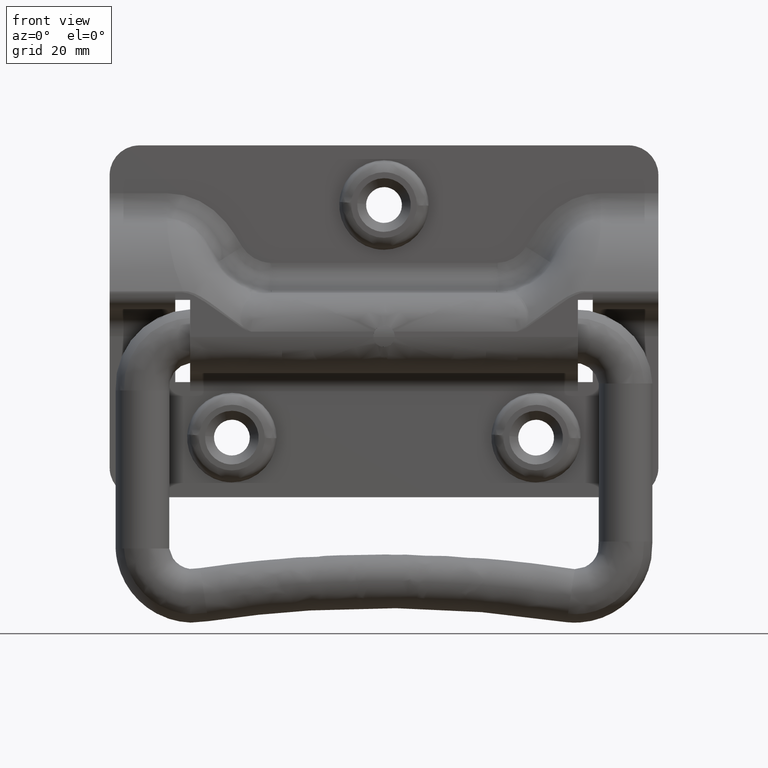
[diagram: clean part render]
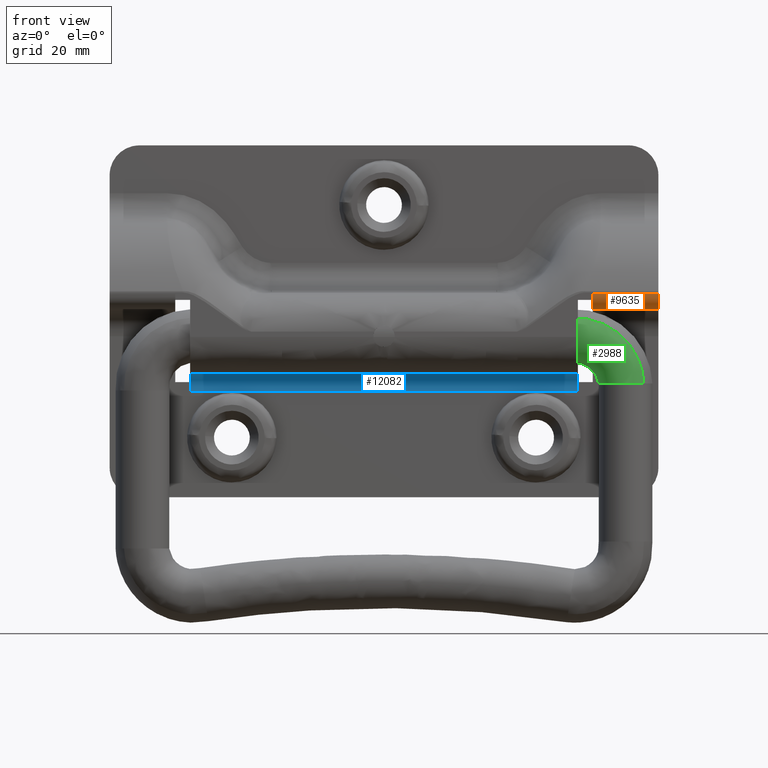
[diagram: same view with three faces highlighted in distinct colors, each labeled with its STEP entity id]
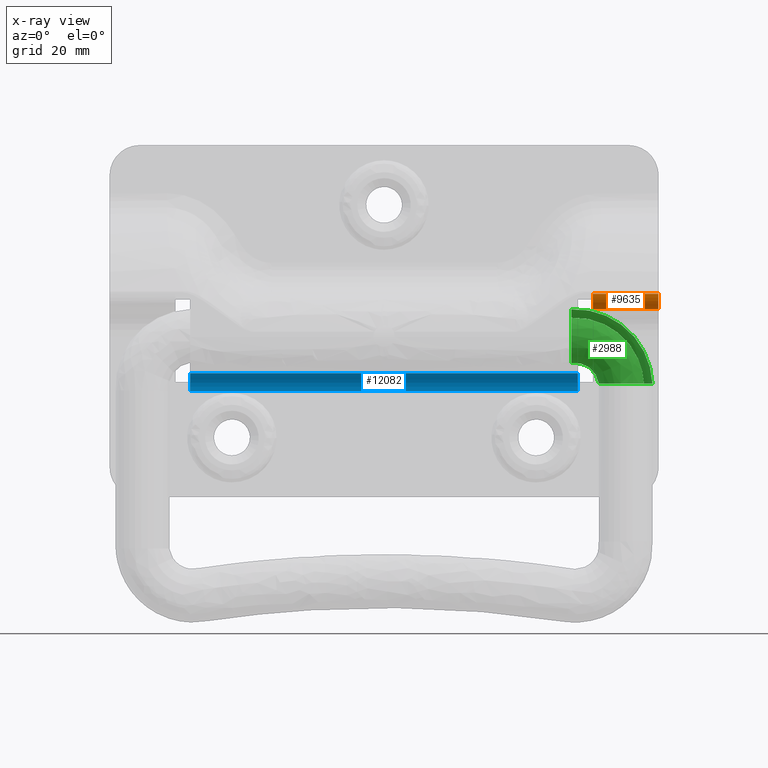
[diagram: x-ray of the same camera — body ghosted, the three highlighted faces saturated]
A machine part, front view with three faces highlighted in distinct colors.
The next image is the same camera in x-ray (body ghosted, the three faces saturated) — at least one of them is partly hidden behind the body in this view.
Their STEP definitions:

[orange] entity #9635 — the highlighted face is a freeform B-spline surface patch.
#9544=CARTESIAN_POINT('',(35.0,-6.898723108055551,7.099999999999900));
#9545=VERTEX_POINT('',#9544);
#9546=CARTESIAN_POINT('',(35.0,-6.698723108055599,6.100000000000001));
#9547=VERTEX_POINT('',#9546);
#9548=CARTESIAN_POINT('',(35.0,-6.898723108055556,7.099999999999900));
#9549=CARTESIAN_POINT('',(35.0,-6.898723108055556,6.579999999999957));
#9550=CARTESIAN_POINT('',(35.0,-6.698723108055598,6.100000000000001));
#9558=(BOUNDED_CURVE()B_SPLINE_CURVE(2,(#9548,#9549,#9550),.UNSPECIFIED.,.F.,.U.)CURVE()GEOMETRIC_REPRESENTATION_ITEM()QUASI_UNIFORM_CURVE()RATIONAL_B_SPLINE_CURVE((1.0,0.980580675690924,1.0))REPRESENTATION_ITEM(''));
#9559=EDGE_CURVE('',#9545,#9547,#9558,.T.);
#9576=CARTESIAN_POINT('',(46.275000000000013,-6.897832152992004,7.168060065600374));
#9577=CARTESIAN_POINT('',(34.718124999999993,-6.897832152992004,7.168060065600374));
#9578=CARTESIAN_POINT('',(46.275000000000013,-6.972106681165132,4.331630269655194));
#9579=CARTESIAN_POINT('',(34.718124999999986,-6.972106681165132,4.331630269655194));
#9580=CARTESIAN_POINT('',(46.275000000000013,-4.139996905264931,4.504849524103047));
#9581=CARTESIAN_POINT('',(34.718124999999993,-4.139996905264931,4.504849524103047));
#9589=(BOUNDED_SURFACE()B_SPLINE_SURFACE(1,2,((#9576,#9578,#9580),(#9577,#9579,#9581)),.UNSPECIFIED.,.F.,.F.,.U.)B_SPLINE_SURFACE_WITH_KNOTS((2,2),(3,3),(0.0,11.556875000000019),(0.0,4.576109521275066),.UNSPECIFIED.)GEOMETRIC_REPRESENTATION_ITEM()RATIONAL_B_SPLINE_SURFACE(((1.0,0.675590207615660,1.0),(1.0,0.675590207615660,1.0)))REPRESENTATION_ITEM('')SURFACE());
#9590=ORIENTED_EDGE('',*,*,#9559,.T.);
#9591=CARTESIAN_POINT('',(35.0,-4.298723108055556,4.499999999999900));
#9592=VERTEX_POINT('',#9591);
#9593=CARTESIAN_POINT('',(35.0,-6.698723108055598,6.100000000000001));
#9594=CARTESIAN_POINT('',(34.999999999999993,-6.032056441388969,4.499999999999900));
#9595=CARTESIAN_POINT('',(35.0,-4.298723108055556,4.499999999999900));
#9603=(BOUNDED_CURVE()B_SPLINE_CURVE(2,(#9593,#9594,#9595),.UNSPECIFIED.,.F.,.U.)CURVE()GEOMETRIC_REPRESENTATION_ITEM()QUASI_UNIFORM_CURVE()RATIONAL_B_SPLINE_CURVE((1.0,0.832050294337832,1.0))REPRESENTATION_ITEM(''));
#9604=EDGE_CURVE('',#9547,#9592,#9603,.T.);
#9605=ORIENTED_EDGE('',*,*,#9604,.T.);
#9606=CARTESIAN_POINT('',(46.0,-4.298723108055556,4.499999999999900));
#9607=VERTEX_POINT('',#9606);
#9608=CARTESIAN_POINT('',(46.0,-4.298723108055556,4.499999999999900));
#9609=CARTESIAN_POINT('',(35.0,-4.298723108055556,4.499999999999900));
#9610=QUASI_UNIFORM_CURVE('',1,(#9608,#9609),.UNSPECIFIED.,.F.,.U.);
#9611=EDGE_CURVE('',#9607,#9592,#9610,.T.);
#9612=ORIENTED_EDGE('',*,*,#9611,.F.);
#9613=CARTESIAN_POINT('',(46.0,-6.898723108055551,7.099999999999900));
#9614=VERTEX_POINT('',#9613);
#9615=CARTESIAN_POINT('',(46.0,-6.898723108055556,7.099999999999900));
#9616=CARTESIAN_POINT('',(46.000000000000007,-6.898723108055556,4.499999999999900));
#9617=CARTESIAN_POINT('',(46.0,-4.298723108055556,4.499999999999900));
#9625=(BOUNDED_CURVE()B_SPLINE_CURVE(2,(#9615,#9616,#9617),.UNSPECIFIED.,.F.,.U.)CURVE()GEOMETRIC_REPRESENTATION_ITEM()QUASI_UNIFORM_CURVE()RATIONAL_B_SPLINE_CURVE((1.0,0.707106781186548,1.0))REPRESENTATION_ITEM(''));
#9626=EDGE_CURVE('',#9614,#9607,#9625,.T.);
#9627=ORIENTED_EDGE('',*,*,#9626,.F.);
#9628=CARTESIAN_POINT('',(46.0,-6.898723108055551,7.099999999999900));
#9629=CARTESIAN_POINT('',(35.0,-6.898723108055551,7.099999999999900));
#9630=QUASI_UNIFORM_CURVE('',1,(#9628,#9629),.UNSPECIFIED.,.F.,.U.);
#9631=EDGE_CURVE('',#9614,#9545,#9630,.T.);
#9632=ORIENTED_EDGE('',*,*,#9631,.T.);
#9633=EDGE_LOOP('',(#9590,#9605,#9612,#9627,#9632));
#9634=FACE_OUTER_BOUND('',#9633,.T.);
#9635=ADVANCED_FACE('',(#9634),#9589,.T.);

[blue] entity #12082 — the highlighted face is a freeform B-spline surface patch.
#12022=CARTESIAN_POINT('',(34.125000000000000,4.498971974926756,-9.278530844923525));
#12023=CARTESIAN_POINT('',(-34.165625000000013,4.498971974926756,-9.278530844923525));
#12024=CARTESIAN_POINT('',(34.125000000000000,4.584673353588060,-6.005727234217547));
#12025=CARTESIAN_POINT('',(-34.165625000000006,4.584673353588060,-6.005727234217547));
#12026=CARTESIAN_POINT('',(34.125000000000000,1.316854381395518,-6.205595604734300));
#12027=CARTESIAN_POINT('',(-34.165625000000013,1.316854381395518,-6.205595604734300));
#12035=(BOUNDED_SURFACE()B_SPLINE_SURFACE(1,2,((#12022,#12024,#12026),(#12023,#12025,#12027)),.UNSPECIFIED.,.F.,.F.,.U.)B_SPLINE_SURFACE_WITH_KNOTS((2,2),(3,3),(0.0,68.290625000000006),(0.0,5.280126370702002),.UNSPECIFIED.)GEOMETRIC_REPRESENTATION_ITEM()RATIONAL_B_SPLINE_SURFACE(((1.0,0.675590207615660,1.0),(1.0,0.675590207615660,1.0)))REPRESENTATION_ITEM('')SURFACE());
#12036=CARTESIAN_POINT('',(-32.500000000000000,4.500000000000090,-9.199999999999902));
#12037=VERTEX_POINT('',#12036);
#12038=CARTESIAN_POINT('',(-32.500000000000000,1.500000000000085,-6.199999999999900));
#12039=VERTEX_POINT('',#12038);
#12040=CARTESIAN_POINT('',(-32.500000000000000,4.500000000000085,-9.199999999999902));
#12041=CARTESIAN_POINT('',(-32.500000000000007,4.500000000000085,-6.199999999999901));
#12042=CARTESIAN_POINT('',(-32.500000000000000,1.500000000000085,-6.199999999999901));
#12050=(BOUNDED_CURVE()B_SPLINE_CURVE(2,(#12040,#12041,#12042),.UNSPECIFIED.,.F.,.U.)CURVE()GEOMETRIC_REPRESENTATION_ITEM()QUASI_UNIFORM_CURVE()RATIONAL_B_SPLINE_CURVE((1.0,0.707106781186548,1.0))REPRESENTATION_ITEM(''));
#12051=EDGE_CURVE('',#12037,#12039,#12050,.T.);
#12052=ORIENTED_EDGE('',*,*,#12051,.F.);
#12053=CARTESIAN_POINT('',(32.500000000000000,4.500000000000090,-9.199999999999902));
#12054=VERTEX_POINT('',#12053);
#12055=CARTESIAN_POINT('',(32.500000000000000,4.500000000000090,-9.199999999999902));
#12056=CARTESIAN_POINT('',(-32.500000000000000,4.500000000000090,-9.199999999999902));
#12057=QUASI_UNIFORM_CURVE('',1,(#12055,#12056),.UNSPECIFIED.,.F.,.U.);
#12058=EDGE_CURVE('',#12054,#12037,#12057,.T.);
#12059=ORIENTED_EDGE('',*,*,#12058,.F.);
#12060=CARTESIAN_POINT('',(32.500000000000000,1.500000000000085,-6.199999999999900));
#12061=VERTEX_POINT('',#12060);
#12062=CARTESIAN_POINT('',(32.500000000000000,4.500000000000085,-9.199999999999902));
#12063=CARTESIAN_POINT('',(32.500000000000007,4.500000000000085,-6.199999999999901));
#12064=CARTESIAN_POINT('',(32.500000000000000,1.500000000000085,-6.199999999999901));
#12072=(BOUNDED_CURVE()B_SPLINE_CURVE(2,(#12062,#12063,#12064),.UNSPECIFIED.,.F.,.U.)CURVE()GEOMETRIC_REPRESENTATION_ITEM()QUASI_UNIFORM_CURVE()RATIONAL_B_SPLINE_CURVE((1.0,0.707106781186548,1.0))REPRESENTATION_ITEM(''));
#12073=EDGE_CURVE('',#12054,#12061,#12072,.T.);
#12074=ORIENTED_EDGE('',*,*,#12073,.T.);
#12075=CARTESIAN_POINT('',(32.500000000000000,1.500000000000085,-6.199999999999900));
#12076=CARTESIAN_POINT('',(-32.500000000000000,1.500000000000085,-6.199999999999900));
#12077=QUASI_UNIFORM_CURVE('',1,(#12075,#12076),.UNSPECIFIED.,.F.,.U.);
#12078=EDGE_CURVE('',#12061,#12039,#12077,.T.);
#12079=ORIENTED_EDGE('',*,*,#12078,.T.);
#12080=EDGE_LOOP('',(#12052,#12059,#12074,#12079));
#12081=FACE_OUTER_BOUND('',#12080,.T.);
#12082=ADVANCED_FACE('',(#12081),#12035,.F.);

[green] entity #2988 — the highlighted face is a freeform B-spline surface patch.
#1648=CARTESIAN_POINT('',(44.710611476453678,1.581514667897255,-7.917789464697169));
#1649=VERTEX_POINT('',#1648);
#1655=CARTESIAN_POINT('',(45.0,0.0,-7.917789464697170));
#1656=VERTEX_POINT('',#1655);
#1657=CARTESIAN_POINT('',(44.710611476453678,1.581514667897255,-7.917789464697169));
#1658=CARTESIAN_POINT('',(44.899851791981710,1.076966526505883,-7.917789464697170));
#1659=CARTESIAN_POINT('',(45.000670940762902,0.539238459190197,-7.917789464697170));
#1660=CARTESIAN_POINT('',(45.0,0.0,-7.917789464697170));
#1661=B_SPLINE_CURVE_WITH_KNOTS('',3,(#1657,#1658,#1659,#1660),.UNSPECIFIED.,.F.,.U.,(4,4),(0.942811831421921,1.0),.UNSPECIFIED.);
#1662=EDGE_CURVE('',#1649,#1656,#1661,.T.);
#1664=CARTESIAN_POINT('',(43.580414267267876,-3.280266940607940,-7.917789464697171));
#1665=VERTEX_POINT('',#1664);
#1675=CARTESIAN_POINT('',(36.0,0.0,-7.917789464697170));
#1676=VERTEX_POINT('',#1675);
#1677=CARTESIAN_POINT('',(43.580414267267876,-3.280266940607940,-7.917789464697171));
#1678=CARTESIAN_POINT('',(42.755259952635562,-4.053043807033264,-7.917789464697170));
#1679=CARTESIAN_POINT('',(41.630972858852168,-4.500000000000000,-7.917789464697170));
#1680=CARTESIAN_POINT('',(39.321902754903853,-4.500000000000000,-7.917789464697170));
#1681=CARTESIAN_POINT('',(38.151060035565251,-4.015021066244156,-7.917789464697170));
#1682=CARTESIAN_POINT('',(36.484978933755862,-2.348939964434770,-7.917789464697170));
#1683=CARTESIAN_POINT('',(36.0,-1.178097245096172,-7.917789464697170));
#1684=CARTESIAN_POINT('',(36.0,0.0,-7.917789464697170));
#1685=B_SPLINE_CURVE_WITH_KNOTS('',3,(#1677,#1678,#1679,#1680,#1681,#1682,#1683,#1684),.UNSPECIFIED.,.F.,.U.,(4,2,2,4),(0.130000052673939,0.250000000000000,0.375000000000000,0.500000000000000),.UNSPECIFIED.);
#1686=EDGE_CURVE('',#1665,#1676,#1685,.T.);
#1688=CARTESIAN_POINT('',(40.225293920682958,4.491431864552791,-7.917789464697169));
#1689=VERTEX_POINT('',#1688);
#1690=CARTESIAN_POINT('',(36.0,0.0,-7.917789464697170));
#1691=CARTESIAN_POINT('',(35.999998454824862,1.178121569614940,-7.917789464697170));
#1692=CARTESIAN_POINT('',(36.484975254495680,2.348997884233506,-7.917789464697170));
#1693=CARTESIAN_POINT('',(38.086238306208109,3.950329177868383,-7.917789464697170));
#1694=CARTESIAN_POINT('',(39.141745217519862,4.422578651781312,-7.917789464697170));
#1695=CARTESIAN_POINT('',(40.225293920682958,4.491431864552791,-7.917789464697169));
#1696=B_SPLINE_CURVE_WITH_KNOTS('',3,(#1690,#1691,#1692,#1693,#1694,#1695),.UNSPECIFIED.,.F.,.U.,(4,2,4),(0.500000000000000,0.625000000000000,0.740274486939181),.UNSPECIFIED.);
#1697=EDGE_CURVE('',#1676,#1689,#1696,.T.);
#1784=CARTESIAN_POINT('',(40.225293920682958,4.491431864552791,-7.917789464697169));
#1785=CARTESIAN_POINT('',(40.316739344334152,4.497247131670079,-7.917789464697169));
#1786=CARTESIAN_POINT('',(40.408385028699193,4.500191266734892,-7.917789464697169));
#1787=CARTESIAN_POINT('',(41.678550682920452,4.500309103857790,-7.917789464697170));
#1788=CARTESIAN_POINT('',(42.849870326290443,4.015468046099279,-7.917789464697169));
#1789=CARTESIAN_POINT('',(44.135511193047243,2.730704114852363,-7.917789464697168));
#1790=CARTESIAN_POINT('',(44.485223633673307,2.179434392010196,-7.917789464697169));
#1791=CARTESIAN_POINT('',(44.710611476453678,1.581514667897255,-7.917789464697169));
#1792=B_SPLINE_CURVE_WITH_KNOTS('',3,(#1784,#1785,#1786,#1787,#1788,#1789,#1790,#1791),.UNSPECIFIED.,.F.,.U.,(4,2,2,4),(0.740274486939181,0.750000000000000,0.875000000000000,0.942811831421921),.UNSPECIFIED.);
#1793=EDGE_CURVE('',#1689,#1649,#1792,.T.);
#1825=CARTESIAN_POINT('',(31.417789464697261,1.582275965707717,4.212633693083777));
#1826=VERTEX_POINT('',#1825);
#1827=CARTESIAN_POINT('',(31.417789464697279,-1.897354E-015,4.500000000000000));
#1828=VERTEX_POINT('',#1827);
#1829=CARTESIAN_POINT('',(31.417789464697261,1.582275965707717,4.212633693083777));
#1830=CARTESIAN_POINT('',(31.417789464697272,1.077703287572200,4.401961902790572));
#1831=CARTESIAN_POINT('',(31.417789464697272,0.538948626777564,4.500004120926867));
#1832=CARTESIAN_POINT('',(31.417789464697279,-1.897354E-015,4.500000000000000));
#1833=B_SPLINE_CURVE_WITH_KNOTS('',3,(#1829,#1830,#1831,#1832),.UNSPECIFIED.,.F.,.U.,(4,4),(0.942815938719341,1.0),.UNSPECIFIED.);
#1834=EDGE_CURVE('',#1826,#1828,#1833,.T.);
#1890=CARTESIAN_POINT('',(31.417789464697240,4.491568550355929,-0.274715678979411));
#1891=VERTEX_POINT('',#1890);
#1897=CARTESIAN_POINT('',(31.417789464697250,-6.342583E-015,-4.500000000000001));
#1898=VERTEX_POINT('',#1897);
#1899=CARTESIAN_POINT('',(31.417789464697250,-6.342583E-015,-4.500000000000001));
#1900=CARTESIAN_POINT('',(31.417789464697250,0.589051271095591,-4.500000163199346));
#1901=CARTESIAN_POINT('',(31.417789464697250,1.177871271074785,-4.382877401867982));
#1902=CARTESIAN_POINT('',(31.417789464697240,2.266298003954507,-3.932039523511044));
#1903=CARTESIAN_POINT('',(31.417789464697240,2.765476487413660,-3.598501791938917));
#1904=CARTESIAN_POINT('',(31.417789464697261,3.598524307513876,-2.765461688950653));
#1905=CARTESIAN_POINT('',(31.417789464697272,3.932065875410550,-2.266287083242548));
#1906=CARTESIAN_POINT('',(31.417789464697250,4.347844086147685,-1.262524828009728));
#1907=CARTESIAN_POINT('',(31.417789464697250,4.460975887116850,-0.771164087683148));
#1908=CARTESIAN_POINT('',(31.417789464697240,4.491568550355929,-0.274715678979411));
#1909=B_SPLINE_CURVE_WITH_KNOTS('',3,(#1899,#1900,#1901,#1902,#1903,#1904,#1905,#1906,#1907,#1908),.UNSPECIFIED.,.F.,.U.,(4,2,2,2,4),(0.500000000000000,0.562500000000000,0.625000000000000,0.687500000000000,0.740277500264273),.UNSPECIFIED.);
#1910=EDGE_CURVE('',#1898,#1891,#1909,.T.);
#1912=CARTESIAN_POINT('',(31.417789464697272,-3.280293611540198,3.080441212172343));
#1913=VERTEX_POINT('',#1912);
#1914=CARTESIAN_POINT('',(31.417789464697272,-3.280293611540198,3.080441212172343));
#1915=CARTESIAN_POINT('',(31.417789464697279,-3.651138318877401,2.685293772487770));
#1916=CARTESIAN_POINT('',(31.417789464697272,-3.950043039418169,2.222732431532803));
#1917=CARTESIAN_POINT('',(31.417789464697279,-4.382853795419855,1.177843660027971));
#1918=CARTESIAN_POINT('',(31.417789464697261,-4.499978402193867,0.589028353145577));
#1919=CARTESIAN_POINT('',(31.417789464697279,-4.499982018318702,-0.589065498240637));
#1920=CARTESIAN_POINT('',(31.417789464697279,-4.382861026246731,-1.177880513120909));
#1921=CARTESIAN_POINT('',(31.417789464697272,-3.932026668527100,-2.266296747795999));
#1922=CARTESIAN_POINT('',(31.417789464697261,-3.598490686947668,-2.765469722280031));
#1923=CARTESIAN_POINT('',(31.417789464697250,-2.765453799522756,-3.598506835032453));
#1924=CARTESIAN_POINT('',(31.417789464697250,-2.266280658120123,-3.932043208769335));
#1925=CARTESIAN_POINT('',(31.417789464697250,-1.177863555602183,-4.382878850682763));
#1926=CARTESIAN_POINT('',(31.417789464697250,-0.589047840139115,-4.500000734285807));
#1927=CARTESIAN_POINT('',(31.417789464697250,-6.342583E-015,-4.500000000000001));
#1928=B_SPLINE_CURVE_WITH_KNOTS('',3,(#1914,#1915,#1916,#1917,#1918,#1919,#1920,#1921,#1922,#1923,#1924,#1925,#1926,#1927),.UNSPECIFIED.,.F.,.U.,(4,2,2,2,2,2,4),(0.129999068925575,0.187500000000000,0.250000000000000,0.312500000000000,0.375000000000000,0.437500000000000,0.500000000000000),.UNSPECIFIED.);
#1929=EDGE_CURVE('',#1913,#1898,#1928,.T.);
#1959=CARTESIAN_POINT('',(31.417789464697240,4.491568550355929,-0.274715678979411));
#1960=CARTESIAN_POINT('',(31.417789464697240,4.497203359466067,-0.183261335167441));
#1961=CARTESIAN_POINT('',(31.417789464697240,4.500037137354792,-0.091634333296992));
#1962=CARTESIAN_POINT('',(31.417789464697240,4.500033572634242,0.589048275720825));
#1963=CARTESIAN_POINT('',(31.417789464697240,4.382907136347519,1.177866680926506));
#1964=CARTESIAN_POINT('',(31.417789464697240,3.932061608165594,2.266289828513048));
#1965=CARTESIAN_POINT('',(31.417789464697240,3.598519904733716,2.765466322863191));
#1966=CARTESIAN_POINT('',(31.417789464697250,2.765472162795606,3.598510071631810));
#1967=CARTESIAN_POINT('',(31.417789464697250,2.266293893003015,3.932049558907789));
#1968=CARTESIAN_POINT('',(31.417789464697261,1.675792851865945,4.176643198920744));
#1969=CARTESIAN_POINT('',(31.417789464697261,1.629182105881359,4.195032888959829));
#1970=CARTESIAN_POINT('',(31.417789464697261,1.582275965707717,4.212633693083777));
#1971=B_SPLINE_CURVE_WITH_KNOTS('',3,(#1959,#1960,#1961,#1962,#1963,#1964,#1965,#1966,#1967,#1968,#1969,#1970),.UNSPECIFIED.,.F.,.U.,(4,2,2,2,2,4),(0.740277500264273,0.750000000000000,0.812500000000000,0.875000000000000,0.937500000000000,0.942815938719341),.UNSPECIFIED.);
#1972=EDGE_CURVE('',#1891,#1826,#1971,.T.);
#2825=CARTESIAN_POINT('',(31.324847549401170,-3.196226441883169,3.165514054163981));
#2826=CARTESIAN_POINT('',(31.325087277805569,-3.224033288261541,3.135412816994848));
#2827=CARTESIAN_POINT('',(31.331809277756111,-4.036833211394922,2.291372181639009));
#2828=CARTESIAN_POINT('',(31.341087702508471,-4.500000271108926,1.126336837882859));
#2829=CARTESIAN_POINT('',(31.359477307800670,-4.499999999999912,-1.182734011412302));
#2830=CARTESIAN_POINT('',(31.368801982907389,-4.015021066244068,-2.353576730752954));
#2831=CARTESIAN_POINT('',(31.382070771890909,-2.348939964434726,-4.019657832565089));
#2832=CARTESIAN_POINT('',(31.385933178784988,-1.178097245096126,-4.504636766321761));
#2833=CARTESIAN_POINT('',(31.385933178784999,1.178097245096216,-4.504636766321760));
#2834=CARTESIAN_POINT('',(31.382070771890909,2.348939964434814,-4.019657832565085));
#2835=CARTESIAN_POINT('',(31.368801982907389,4.015021066244248,-2.353576730752948));
#2836=CARTESIAN_POINT('',(31.359477307800681,4.500000000000088,-1.182734011412302));
#2837=CARTESIAN_POINT('',(31.340712406464011,4.500000000000088,1.173460478784103));
#2838=CARTESIAN_POINT('',(31.331387731357399,4.015021066244248,2.344303198124731));
#2839=CARTESIAN_POINT('',(31.318118939640190,2.348939969569493,4.010384643200133));
#2840=CARTESIAN_POINT('',(31.314122207938340,1.137351761366009,4.512229925841688));
#2841=CARTESIAN_POINT('',(31.314258792855810,-0.081999805982146,4.495079788772660));
#2842=CARTESIAN_POINT('',(31.314256535480201,-0.122993349134687,4.495363233693721));
#2843=CARTESIAN_POINT('',(32.881383282490212,-3.196226441884225,3.255581797886012));
#2844=CARTESIAN_POINT('',(32.877606589176288,-3.224033288262609,3.225448620472297));
#2845=CARTESIAN_POINT('',(32.771707864605403,-4.036833211396318,2.380512378594364));
#2846=CARTESIAN_POINT('',(32.625535095409226,-4.500000271110327,1.214240822731345));
#2847=CARTESIAN_POINT('',(32.335824330734852,-4.500000000001314,-1.097280167974774));
#2848=CARTESIAN_POINT('',(32.188922931135139,-4.015021066245470,-2.269365261594013));
#2849=CARTESIAN_POINT('',(31.979885763580050,-2.348939964435423,-3.937214232203037));
#2850=CARTESIAN_POINT('',(31.919037211533020,-1.178097245096827,-4.422707774236105));
#2851=CARTESIAN_POINT('',(31.919037211532981,1.178097245095518,-4.422707774236107));
#2852=CARTESIAN_POINT('',(31.979885763580040,2.348939964434118,-3.937214232203350));
#2853=CARTESIAN_POINT('',(32.188922931135217,4.015021066242848,-2.269365261593490));
#2854=CARTESIAN_POINT('',(32.335824330734802,4.499999999998691,-1.097280167974416));
#2855=CARTESIAN_POINT('',(32.631447528128120,4.499999999998691,1.261414466248748));
#2856=CARTESIAN_POINT('',(32.778348927726412,4.015021066242848,2.433499559868648));
#2857=CARTESIAN_POINT('',(32.987386138346523,2.348939969568792,4.101348874103140));
#2858=CARTESIAN_POINT('',(33.050350850158708,1.137351761365311,4.603726661803299));
#2859=CARTESIAN_POINT('',(33.048199084514103,-0.081999805982846,4.586558326825352));
#2860=CARTESIAN_POINT('',(33.048234647322772,-0.122993349135386,4.586842072508140));
#2861=CARTESIAN_POINT('',(36.003719487939783,-3.196226441882853,2.807511860890817));
#2862=CARTESIAN_POINT('',(35.991966750499827,-3.224033288261221,2.778932322040532));
#2863=CARTESIAN_POINT('',(35.662419233224860,-4.036833211394507,1.977560205876922));
#2864=CARTESIAN_POINT('',(35.207542431103683,-4.500000271108507,0.871420525246130));
#2865=CARTESIAN_POINT('',(34.305988010948333,-4.499999999999493,-1.320920595973929));
#2866=CARTESIAN_POINT('',(33.848843775098501,-4.015021066243648,-2.432574073768007));
#2867=CARTESIAN_POINT('',(33.198338494096028,-2.348939964434519,-4.014430304773783));
#2868=CARTESIAN_POINT('',(33.008983151644728,-1.178097245095920,-4.474892251935049));
#2869=CARTESIAN_POINT('',(33.008983151644749,1.178097245096424,-4.474892251935047));
#2870=CARTESIAN_POINT('',(33.198338494096490,2.348939964435022,-4.014430304773950));
#2871=CARTESIAN_POINT('',(33.848843775097812,4.015021066244664,-2.432574073768814));
#2872=CARTESIAN_POINT('',(34.305988010948347,4.500000000000505,-1.320920595973943));
#2873=CARTESIAN_POINT('',(35.225941401738069,4.500000000000505,0.916161939638895));
#2874=CARTESIAN_POINT('',(35.683085637588533,4.015021066244664,2.027815417432612));
#2875=CARTESIAN_POINT('',(36.333591052615873,2.348939969569702,3.609671974349201));
#2876=CARTESIAN_POINT('',(36.529531698152532,1.137351761366217,4.086147631196871));
#2877=CARTESIAN_POINT('',(36.522835592710123,-0.081999805981938,4.069864479580937));
#2878=CARTESIAN_POINT('',(36.522946261043032,-0.122993349134478,4.070133595600582));
#2879=CARTESIAN_POINT('',(40.044273177977892,-3.196226441883313,0.389044442135350));
#2880=CARTESIAN_POINT('',(40.022434806776687,-3.224033288261685,0.367206103531828));
#2881=CARTESIAN_POINT('',(39.410085467105638,-4.036833211395110,-0.245142322098170));
#2882=CARTESIAN_POINT('',(38.564855280833612,-4.500000271109115,-1.090371246712052));
#2883=CARTESIAN_POINT('',(36.889630237639828,-4.500000000000101,-2.765593789330780));
#2884=CARTESIAN_POINT('',(36.040186815113252,-4.015021066244257,-3.615035943909256));
#2885=CARTESIAN_POINT('',(34.831449202494028,-2.348939964434820,-4.823771752270520));
#2886=CARTESIAN_POINT('',(34.479598216415589,-1.178097245096223,-5.175622213148593));
#2887=CARTESIAN_POINT('',(34.479598216415582,1.178097245096121,-5.175622213148593));
#2888=CARTESIAN_POINT('',(34.831449202493872,2.348939964434719,-4.823771752271006));
#2889=CARTESIAN_POINT('',(36.040186815114119,4.015021066244060,-3.615035943909374));
#2890=CARTESIAN_POINT('',(36.889630237639821,4.499999999999899,-2.765593789330914));
#2891=CARTESIAN_POINT('',(38.599043362756930,4.499999999999899,-1.056183215820334));
#2892=CARTESIAN_POINT('',(39.448486785283301,4.015021066244060,-0.206741061241283));
#2893=CARTESIAN_POINT('',(40.657224646939277,2.348939969569397,1.001994996155757));
#2894=CARTESIAN_POINT('',(41.021312126344128,1.137351761365915,1.366081932095610));
#2895=CARTESIAN_POINT('',(41.008869745409427,-0.081999805982241,1.353639569733361));
#2896=CARTESIAN_POINT('',(41.009075383980573,-0.122993349134782,1.353845207997556));
#2897=CARTESIAN_POINT('',(42.852692317813421,-3.196226441883233,-3.390386682383782));
#2898=CARTESIAN_POINT('',(42.824113205419067,-3.224033288261609,-3.402140311287166));
#2899=CARTESIAN_POINT('',(42.022753047107422,-4.036833211395008,-3.731712825254156));
#2900=CARTESIAN_POINT('',(40.916629871984313,-4.500000271109014,-4.186624130490038));
#2901=CARTESIAN_POINT('',(38.724321464272251,-4.500000000000000,-5.088246934952020));
#2902=CARTESIAN_POINT('',(37.612684574264357,-4.015021066244155,-5.545425845906314));
#2903=CARTESIAN_POINT('',(36.030851947277803,-2.348939964434769,-6.195980468747876));
#2904=CARTESIAN_POINT('',(35.570396871000789,-1.178097245096172,-6.385350174095936));
#2905=CARTESIAN_POINT('',(35.570396871000789,1.178097245096172,-6.385350174095936));
#2906=CARTESIAN_POINT('',(36.030851947275337,2.348939964434769,-6.195980468747038));
#2907=CARTESIAN_POINT('',(37.612684574263056,4.015021066244152,-5.545425845905712));
#2908=CARTESIAN_POINT('',(38.724321464272293,4.500000000000000,-5.088246934952084));
#2909=CARTESIAN_POINT('',(40.961370618761578,4.500000000000000,-4.168223764264749));
#2910=CARTESIAN_POINT('',(42.073007508769429,4.015021066244152,-3.711044853311222));
#2911=CARTESIAN_POINT('',(43.654840461659838,2.348939969569448,-3.060490096435451));
#2912=CARTESIAN_POINT('',(44.131309008674023,1.137351761365965,-2.864534588496144));
#2913=CARTESIAN_POINT('',(44.115026100030633,-0.081999805982190,-2.871231201848571));
#2914=CARTESIAN_POINT('',(44.115295212034589,-0.122993349134731,-2.871120525121300));
#2915=CARTESIAN_POINT('',(43.609251199979873,-3.196226441883236,-6.452073987555666));
#2916=CARTESIAN_POINT('',(43.579118513205543,-3.224033288261609,-6.455852990893905));
#2917=CARTESIAN_POINT('',(42.734196028887602,-4.036833211395011,-6.561816488696166));
#2918=CARTESIAN_POINT('',(41.567943462688604,-4.500000271109014,-6.708078664847863));
#2919=CARTESIAN_POINT('',(39.256460109007890,-4.500000000000000,-6.997966631866874));
#2920=CARTESIAN_POINT('',(38.084394099700638,-4.015021066244154,-7.144957884089963));
#2921=CARTESIAN_POINT('',(36.416572285620589,-2.348939964434770,-7.354122909771085));
#2922=CARTESIAN_POINT('',(35.931086648576283,-1.178097245096172,-7.415008679991130));
#2923=CARTESIAN_POINT('',(35.931086648576283,1.178097245096172,-7.415008679991130));
#2924=CARTESIAN_POINT('',(36.416572285629051,2.348939964434770,-7.354122909769856));
#2925=CARTESIAN_POINT('',(38.084394099702180,4.015021066244160,-7.144957884089374));
#2926=CARTESIAN_POINT('',(39.256460109007797,4.500000000000000,-6.997966631866388));
#2927=CARTESIAN_POINT('',(41.615116338097351,4.500000000000000,-6.702162615774249));
#2928=CARTESIAN_POINT('',(42.787182347404752,4.015021066244160,-6.555171363551633));
#2929=CARTESIAN_POINT('',(44.455004505111077,2.348939969569449,-6.346006294775374));
#2930=CARTESIAN_POINT('',(44.957374112902308,1.137351761365965,-6.283003070432502));
#2931=CARTESIAN_POINT('',(44.940206057465822,-0.081999805982190,-6.285156152210184));
#2932=CARTESIAN_POINT('',(44.940489798528553,-0.122993349134731,-6.285120567649430));
#2933=CARTESIAN_POINT('',(43.674721150325908,-3.196226441883235,-8.009399690261999));
#2934=CARTESIAN_POINT('',(43.644619913156781,-3.224033288261608,-8.009163396732525));
#2935=CARTESIAN_POINT('',(42.800579277801077,-4.036833211395010,-8.002537710896846));
#2936=CARTESIAN_POINT('',(41.635543934044676,-4.500000271109014,-7.993392229208118));
#2937=CARTESIAN_POINT('',(39.326473084749871,-4.500000000000000,-7.975266113735863));
#2938=CARTESIAN_POINT('',(38.155630365409628,-4.015021066244156,-7.966075044376843));
#2939=CARTESIAN_POINT('',(36.489549263597503,-2.348939964434770,-7.952996373167257));
#2940=CARTESIAN_POINT('',(36.004570329840462,-1.178097245096172,-7.949189307586122));
#2941=CARTESIAN_POINT('',(36.004570329840462,1.178097245096172,-7.949189307586122));
#2942=CARTESIAN_POINT('',(36.489549263596828,2.348939964434770,-7.952996373167409));
#2943=CARTESIAN_POINT('',(38.155630365409642,4.015021066244160,-7.966075044376946));
#2944=CARTESIAN_POINT('',(39.326473084749871,4.500000000000000,-7.975266113735949));
#2945=CARTESIAN_POINT('',(41.682667574946613,4.500000000000000,-7.993762147938335));
#2946=CARTESIAN_POINT('',(42.853510294286842,4.015021066244160,-8.002953217297257));
#2947=CARTESIAN_POINT('',(44.519591739361843,2.348939969569449,-8.016031891201561));
#2948=CARTESIAN_POINT('',(45.021437022003958,1.137351761365965,-8.019971356958987));
#2949=CARTESIAN_POINT('',(45.004286884934913,-0.081999805982190,-8.019836729056614));
#2950=CARTESIAN_POINT('',(45.004570329855973,-0.122993349134731,-8.019838954088110));
#2951=B_SPLINE_SURFACE_WITH_KNOTS('',3,3,((#2825,#2843,#2861,#2879,#2897,#2915,#2933),(#2826,#2844,#2862,#2880,#2898,#2916,#2934),(#2827,#2845,#2863,#2881,#2899,#2917,#2935),(#2828,#2846,#2864,#2882,#2900,#2918,#2936),(#2829,#2847,#2865,#2883,#2901,#2919,#2937),(#2830,#2848,#2866,#2884,#2902,#2920,#2938),(#2831,#2849,#2867,#2885,#2903,#2921,#2939),(#2832,#2850,#2868,#2886,#2904,#2922,#2940),(#2833,#2851,#2869,#2887,#2905,#2923,#2941),(#2834,#2852,#2870,#2888,#2906,#2924,#2942),(#2835,#2853,#2871,#2889,#2907,#2925,#2943),(#2836,#2854,#2872,#2890,#2908,#2926,#2944),(#2837,#2855,#2873,#2891,#2909,#2927,#2945),(#2838,#2856,#2874,#2892,#2910,#2928,#2946),(#2839,#2857,#2875,#2893,#2911,#2929,#2947),(#2840,#2858,#2876,#2894,#2912,#2930,#2948),(#2841,#2859,#2877,#2895,#2913,#2931,#2949),(#2842,#2860,#2878,#2896,#2914,#2932,#2950)),.UNSPECIFIED.,.F.,.F.,.U.,(4,1,2,2,2,2,2,2,1,4),(4,1,1,1,4),(0.0,0.122999658303665,3.516096552155313,7.050572483250780,10.585048414346250,14.119524345441709,17.654000276537179,21.188476207632640,24.722952138728111,24.845951897876759),(0.0,5.214232611850371,10.324761332179129,15.435290052507870,20.648036774952640),.UNSPECIFIED.);
#2952=ORIENTED_EDGE('',*,*,#1686,.F.);
#2953=CARTESIAN_POINT('',(31.417789464697272,-3.280293611540198,3.080441212172343));
#2954=CARTESIAN_POINT('',(32.932776059849203,-3.280291866953350,3.156606149406454));
#2955=CARTESIAN_POINT('',(34.462969935433712,-3.280289775713571,2.931822653466685));
#2956=CARTESIAN_POINT('',(37.324510963336913,-3.280285210639093,1.911639298106126));
#2957=CARTESIAN_POINT('',(38.651132408967008,-3.280282744734910,1.118284136295066));
#2958=CARTESIAN_POINT('',(40.902676920606439,-3.280277807413228,-0.917707791453679));
#2959=CARTESIAN_POINT('',(41.825085774074012,-3.280275341509045,-2.158071044066944));
#2960=CARTESIAN_POINT('',(43.127125346081847,-3.280270776434568,-4.902866106020411));
#2961=CARTESIAN_POINT('',(43.504247709204058,-3.280268685195915,-6.402801107061186));
#2962=CARTESIAN_POINT('',(43.580414267267876,-3.280266940607940,-7.917789464697171));
#2963=B_SPLINE_CURVE_WITH_KNOTS('',3,(#2953,#2954,#2955,#2956,#2957,#2958,#2959,#2960,#2961,#2962),.UNSPECIFIED.,.F.,.U.,(4,2,2,2,4),(0.059010968641860,0.076262574372848,0.093514180103836,0.110765785834824,0.128017391565812),.UNSPECIFIED.);
#2964=EDGE_CURVE('',#1913,#1665,#2963,.T.);
#2965=ORIENTED_EDGE('',*,*,#2964,.F.);
#2966=ORIENTED_EDGE('',*,*,#1929,.T.);
#2967=ORIENTED_EDGE('',*,*,#1910,.T.);
#2968=ORIENTED_EDGE('',*,*,#1972,.T.);
#2969=ORIENTED_EDGE('',*,*,#1834,.T.);
#2970=CARTESIAN_POINT('',(31.417789464697300,0.0,4.500000000000000));
#2971=CARTESIAN_POINT('',(33.118490696831600,-7.229772E-013,4.576166628625689));
#2972=CARTESIAN_POINT('',(34.834408638160902,0.0,4.314492979216495));
#2973=CARTESIAN_POINT('',(38.039575808974213,0.0,3.151979518094680));
#2974=CARTESIAN_POINT('',(39.523534061130597,0.0,2.253463463754710));
#2975=CARTESIAN_POINT('',(42.037872214538048,0.0,-0.045317117722653));
#2976=CARTESIAN_POINT('',(43.065444451771448,0.0,-1.443014685624704));
#2977=CARTESIAN_POINT('',(44.509818741504503,0.0,-4.531431278525470));
#2978=CARTESIAN_POINT('',(44.923833370812652,0.0,-6.217088232587090));
#2979=CARTESIAN_POINT('',(45.0,0.0,-7.917789464697170));
#2980=B_SPLINE_CURVE_WITH_KNOTS('',3,(#2970,#2971,#2972,#2973,#2974,#2975,#2976,#2977,#2978,#2979),.UNSPECIFIED.,.F.,.U.,(4,2,2,2,4),(0.059010968641860,0.076262574372848,0.093514180103836,0.110765785834824,0.128017391565812),.UNSPECIFIED.);
#2981=EDGE_CURVE('',#1828,#1656,#2980,.T.);
#2982=ORIENTED_EDGE('',*,*,#2981,.T.);
#2983=ORIENTED_EDGE('',*,*,#1662,.F.);
#2984=ORIENTED_EDGE('',*,*,#1793,.F.);
#2985=ORIENTED_EDGE('',*,*,#1697,.F.);
#2986=EDGE_LOOP('',(#2952,#2965,#2966,#2967,#2968,#2969,#2982,#2983,#2984,#2985));
#2987=FACE_OUTER_BOUND('',#2986,.T.);
#2988=ADVANCED_FACE('',(#2987),#2951,.T.);